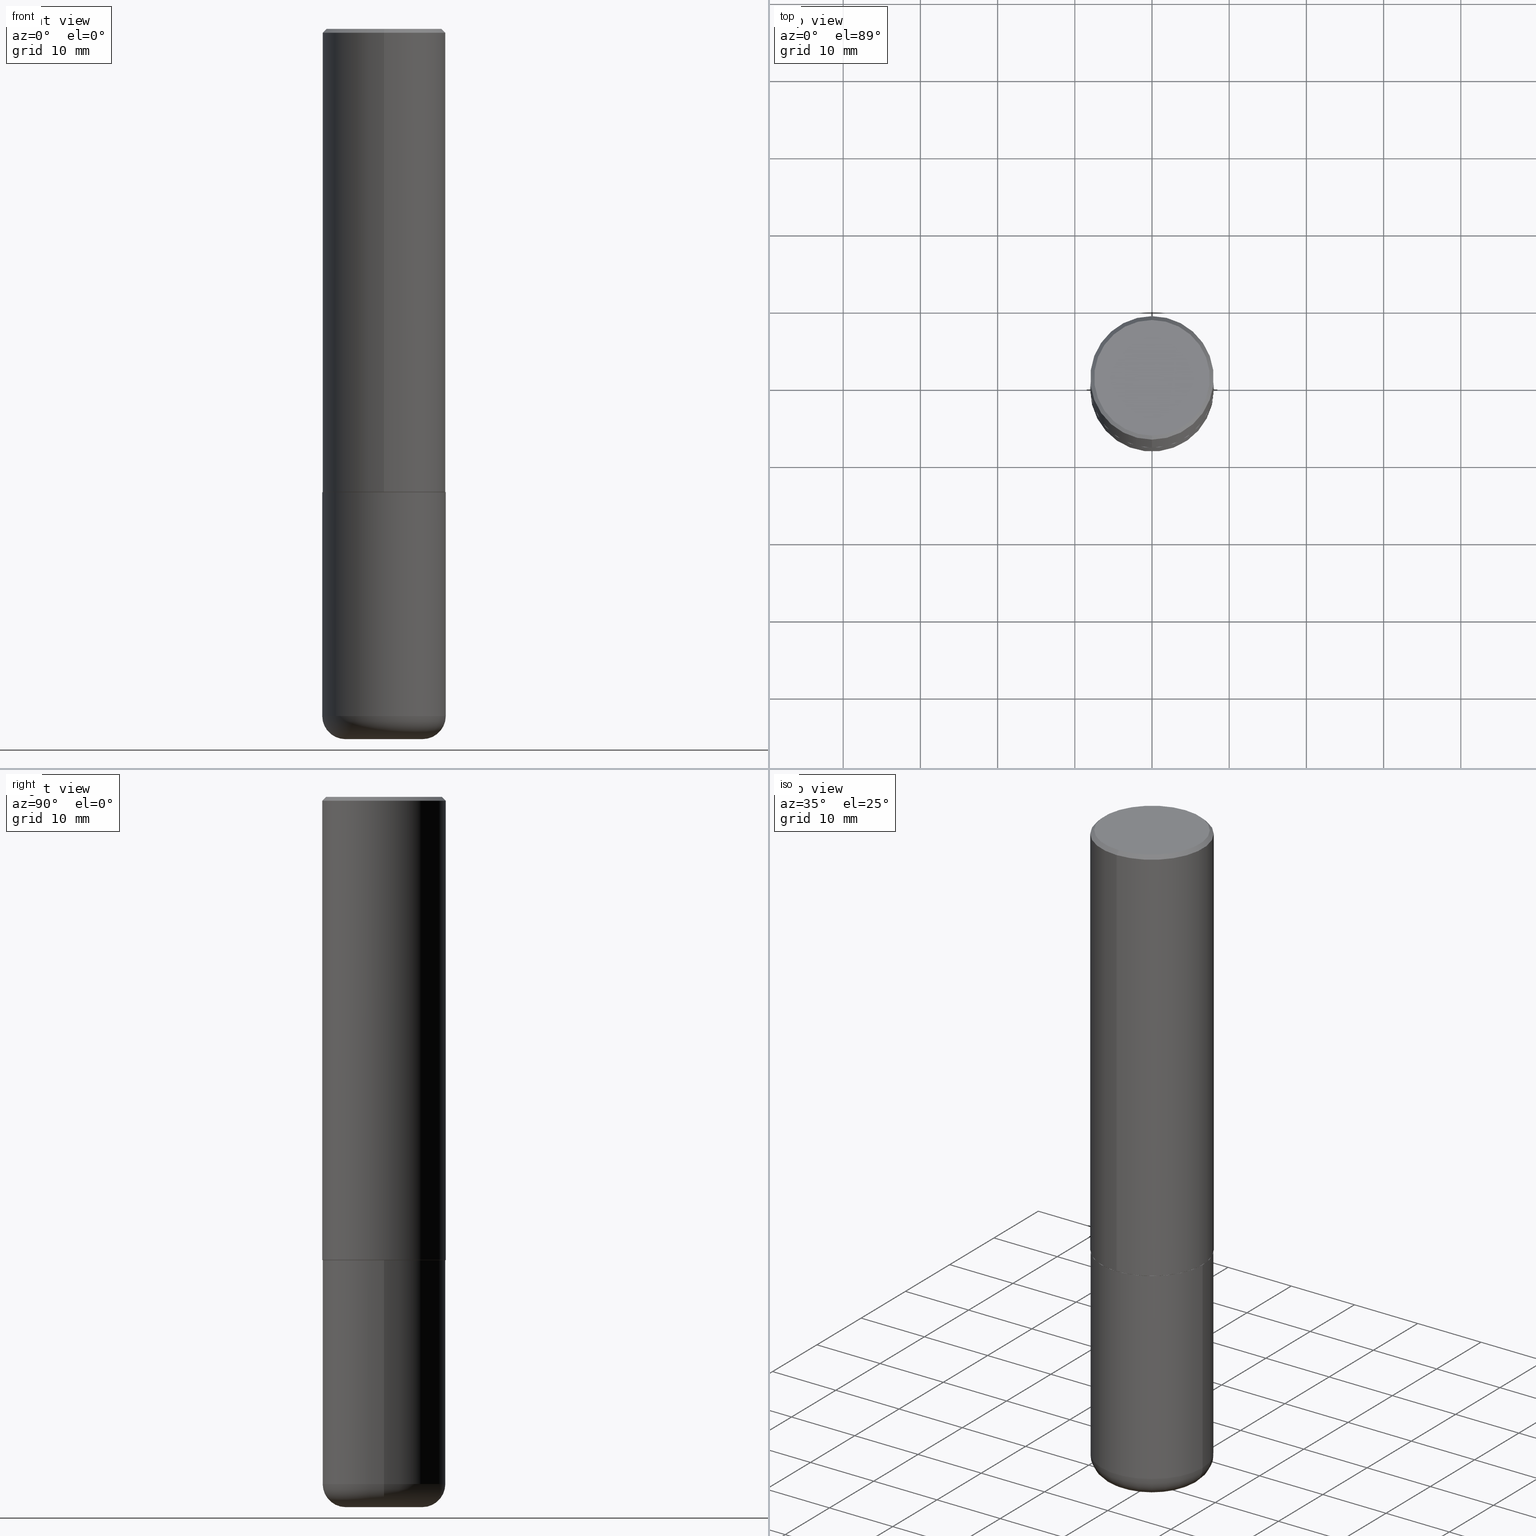
[diagram: canonical four-view strip — front | top / right | iso, engineering-drawing reading convention]
A machine part, canonical four-view strip (front | top / right | iso — engineering-drawing reading convention). The complete STEP part file that produces these views, byte-faithful:
ISO-10303-21;
HEADER;
FILE_DESCRIPTION (( 'STEP AP203' ),
    '1' );
FILE_NAME ('46478.STEP',
    '2024-03-04T23:30:33',
    ( '' ),
    ( '' ),
    'SwSTEP 2.0',
    'SolidWorks 2023',
    '' );
FILE_SCHEMA (( 'CONFIG_CONTROL_DESIGN' ));
ENDSEC;

DATA;
#1 = CARTESIAN_POINT ( 'NONE',  ( -5.117336148260046858E-45, 7.307990422923716453E-31, 2.092834829058542282E-16 ) ) ;
#2 = CC_DESIGN_APPROVAL ( #252, ( #277 ) ) ;
#3 = EDGE_CURVE ( 'NONE', #365, #248, #140, .T. ) ;
#4 = ORIENTED_EDGE ( 'NONE', *, *, #100, .F. ) ;
#5 = DIRECTION ( 'NONE',  ( -6.982962677686265922E-15, -1.000000000000000000, 3.469564049740290009E-15 ) ) ;
#6 = ORIENTED_EDGE ( 'NONE', *, *, #211, .T. ) ;
#7 = ORIENTED_EDGE ( 'NONE', *, *, #282, .T. ) ;
#8 = EDGE_LOOP ( 'NONE', ( #225, #343, #75, #331 ) ) ;
#9 = CARTESIAN_POINT ( 'NONE',  ( 2.237854346276435985E-15, 0.3149500000000001743, -1.099776987529980703E-15 ) ) ;
#10 = PLANE ( 'NONE',  #198 ) ;
#11 = AXIS2_PLACEMENT_3D ( 'NONE', #1, #386, #77 ) ;
#12 = CARTESIAN_POINT ( 'NONE',  ( -0.1968500000000000250, -1.062169457542108922E-14, -3.622000000000000330 ) ) ;
#13 = CIRCLE ( 'NONE', #340, 0.3139500000000000068 ) ;
#14 = ORIENTED_EDGE ( 'NONE', *, *, #345, .F. ) ;
#15 = CARTESIAN_POINT ( 'NONE',  ( 2.234301632597693067E-15, 0.3139499999999917357, -2.362200000000000966 ) ) ;
#16 = EDGE_CURVE ( 'NONE', #283, #185, #334, .T. ) ;
#17 = APPROVAL_PERSON_ORGANIZATION ( #245, #380, #33 ) ;
#18 = VERTEX_POINT ( 'NONE', #165 ) ;
#19 = FACE_OUTER_BOUND ( 'NONE', #294, .T. ) ;
#20 = VERTEX_POINT ( 'NONE', #354 ) ;
#21 =( LENGTH_UNIT ( ) NAMED_UNIT ( * ) SI_UNIT ( $, .METRE. ) );
#22 = PERSON_AND_ORGANIZATION ( #199, #143 ) ;
#23 = APPROVAL_DATE_TIME ( #364, #252 ) ;
#24 = AXIS2_PLACEMENT_3D ( 'NONE', #122, #286, #230 ) ;
#25 = CLOSED_SHELL ( 'NONE', ( #391, #139, #160, #307, #260, #146, #132, #106 ) ) ;
#26 = AXIS2_PLACEMENT_3D ( 'NONE', #229, #79, #202 ) ;
#27 = CC_DESIGN_DATE_AND_TIME_ASSIGNMENT ( #399, #87, ( #402 ) ) ;
#28 = APPLICATION_PROTOCOL_DEFINITION ( 'international standard', 'config_control_design', 1994, #65 ) ;
#29 = DIRECTION ( 'NONE',  ( -2.445169622182784195E-29, 3.491909787363010375E-15, 1.000000000000000000 ) ) ;
#30 = CARTESIAN_POINT ( 'NONE',  ( 0.3149500000000001743, -1.443308555850978931E-14, -3.503899999999999793 ) ) ;
#31 = EDGE_CURVE ( 'NONE', #299, #185, #258, .T. ) ;
#32 = CIRCLE ( 'NONE', #284, 0.1181000000000002742 ) ;
#33 = APPROVAL_ROLE ( '' ) ;
#34 = LOCAL_TIME ( 18, 30, 33.00000000000000000, #126 ) ;
#35 = DIRECTION ( 'NONE',  ( -2.445468806185136597E-29, 3.491481338843145583E-15, 1.000000000000000000 ) ) ;
#36 = CARTESIAN_POINT ( 'NONE',  ( 5.775979681520172513E-29, -8.248589299708901965E-15, -2.362199999999999633 ) ) ;
#37 = DIRECTION ( 'NONE',  ( -2.445468806185136877E-29, 3.491481338843145188E-15, 1.000000000000000000 ) ) ;
#38 = CARTESIAN_POINT ( 'NONE',  ( 8.568678149992099474E-29, -1.223380146317249786E-14, -3.503899999999999793 ) ) ;
#39 = APPROVAL ( #265, 'UNSPECIFIED' ) ;
#40 = CIRCLE ( 'NONE', #271, 0.1181000000000002742 ) ;
#41 = EDGE_LOOP ( 'NONE', ( #295, #136, #14, #298 ) ) ;
#42 = CARTESIAN_POINT ( 'NONE',  ( 8.568678149992099474E-29, -1.223380146317249786E-14, -3.503899999999999793 ) ) ;
#43 = DIRECTION ( 'NONE',  ( -6.982962677686266711E-15, -1.000000000000000000, 3.480615376543096919E-15 ) ) ;
#44 = LOCAL_TIME ( 18, 30, 33.00000000000000000, #161 ) ;
#45 = DIRECTION ( 'NONE',  ( 1.000000000000000000, -6.982962677686266711E-15, 0.000000000000000000 ) ) ;
#46 = ORIENTED_EDGE ( 'NONE', *, *, #172, .F. ) ;
#47 = CARTESIAN_POINT ( 'NONE',  ( -2.199284095337233467E-15, -0.3149500000000085564, -2.361199999999998411 ) ) ;
#48 = EDGE_CURVE ( 'NONE', #207, #18, #257, .T. ) ;
#49 = CARTESIAN_POINT ( 'NONE',  ( 2.237854346276465567E-15, 0.3149499999999920141, -2.361200000000000632 ) ) ;
#50 = LENGTH_MEASURE_WITH_UNIT ( LENGTH_MEASURE( 0.02539999999999999897 ), #21 );
#51 = ORIENTED_EDGE ( 'NONE', *, *, #88, .T. ) ;
#52 = CIRCLE ( 'NONE', #24, 0.1968500000000000250 ) ;
#53 = AXIS2_PLACEMENT_3D ( 'NONE', #104, #112, #406 ) ;
#54 = LOCAL_TIME ( 18, 30, 33.00000000000000000, #376 ) ;
#55 = EDGE_LOOP ( 'NONE', ( #196, #388, #124, #200 ) ) ;
#56 = DATE_AND_TIME ( #174, #263 ) ;
#57 = ADVANCED_FACE ( 'NONE', ( #138 ), #115, .T. ) ;
#58 = FACE_OUTER_BOUND ( 'NONE', #41, .T. ) ;
#59 = AXIS2_PLACEMENT_3D ( 'NONE', #302, #254, #5 ) ;
#60 = SECURITY_CLASSIFICATION_LEVEL ( 'unclassified' ) ;
#61 = DIRECTION ( 'NONE',  ( 1.000000000000000000, -6.982962677686269866E-15, 4.883557194083114022E-29 ) ) ;
#62 = EDGE_CURVE ( 'NONE', #373, #228, #99, .T. ) ;
#63 = PLANE ( 'NONE',  #367 ) ;
#64 = CYLINDRICAL_SURFACE ( 'NONE', #325, 0.3149500000000001743 ) ;
#65 = APPLICATION_CONTEXT ( 'configuration controlled 3d designs of mechanical parts and assemblies' ) ;
#66 = ORIENTED_EDGE ( 'NONE', *, *, #313, .T. ) ;
#67 = PERSON_AND_ORGANIZATION ( #199, #143 ) ;
#68 = EDGE_CURVE ( 'NONE', #266, #299, #103, .T. ) ;
#69 = CARTESIAN_POINT ( 'NONE',  ( 4.890339244365585170E-31, -6.983819574726043281E-17, -0.02000000000000006981 ) ) ;
#70 = CALENDAR_DATE ( 2024, 4, 3 ) ;
#71 = CALENDAR_DATE ( 2024, 4, 3 ) ;
#72 = EDGE_CURVE ( 'NONE', #242, #221, #177, .T. ) ;
#73 = ORIENTED_EDGE ( 'NONE', *, *, #362, .F. ) ;
#74 = CARTESIAN_POINT ( 'NONE',  ( -2.160713844398143363E-15, -0.3149500000000000632, -0.01999999999999896652 ) ) ;
#75 = ORIENTED_EDGE ( 'NONE', *, *, #211, .F. ) ;
#76 = ORIENTED_EDGE ( 'NONE', *, *, #336, .T. ) ;
#77 = DIRECTION ( 'NONE',  ( -6.982962677686265922E-15, -1.000000000000000000, 3.491909787363010375E-15 ) ) ;
#78 = VECTOR ( 'NONE', #346, 39.37007874015748143 ) ;
#79 = DIRECTION ( 'NONE',  ( 2.438088387897960049E-29, -3.491481338843145188E-15, -1.000000000000000000 ) ) ;
#80 = CC_DESIGN_PERSON_AND_ORGANIZATION_ASSIGNMENT ( #22, #306, ( #411 ) ) ;
#81 = DIRECTION ( 'NONE',  ( -6.982962677686265922E-15, -1.000000000000000000, 3.491909787363010375E-15 ) ) ;
#82 = DIRECTION ( 'NONE',  ( -2.445468806185136597E-29, 3.491481338843145583E-15, 1.000000000000000000 ) ) ;
#83 = FACE_OUTER_BOUND ( 'NONE', #55, .T. ) ;
#84 = DIRECTION ( 'NONE',  ( -2.445468806185136597E-29, 3.491481338843145583E-15, 1.000000000000000000 ) ) ;
#85 = ORIENTED_EDGE ( 'NONE', *, *, #350, .F. ) ;
#86 = CARTESIAN_POINT ( 'NONE',  ( 0.000000000000000000, 0.000000000000000000, 0.000000000000000000 ) ) ;
#87 = DATE_TIME_ROLE ( 'classification_date' ) ;
#88 = EDGE_CURVE ( 'NONE', #18, #262, #101, .T. ) ;
#89 = APPROVAL_DATE_TIME ( #56, #39 ) ;
#90 = DIRECTION ( 'NONE',  ( 7.105427357601001859E-15, 1.000000000000000000, -3.491481338843145583E-15 ) ) ;
#91 = AXIS2_PLACEMENT_3D ( 'NONE', #42, #378, #108 ) ;
#92 = AXIS2_PLACEMENT_3D ( 'NONE', #38, #381, #315 ) ;
#93 = CALENDAR_DATE ( 2024, 4, 3 ) ;
#94 = EDGE_CURVE ( 'NONE', #262, #248, #407, .T. ) ;
#95 = CARTESIAN_POINT ( 'NONE',  ( -2.160713844398143363E-15, -0.3149500000000000632, -0.01999999999999896652 ) ) ;
#96 = APPROVAL_STATUS ( 'not_yet_approved' ) ;
#97 = DIRECTION ( 'NONE',  ( -2.445169622182784195E-29, 3.491909787363010375E-15, 1.000000000000000000 ) ) ;
#98 = PERSON_AND_ORGANIZATION ( #199, #143 ) ;
#99 = CIRCLE ( 'NONE', #324, 0.1968500000000000250 ) ;
#100 = EDGE_CURVE ( 'NONE', #266, #283, #130, .T. ) ;
#101 = LINE ( 'NONE', #369, #78 ) ;
#102 = FACE_OUTER_BOUND ( 'NONE', #390, .T. ) ;
#103 = CIRCLE ( 'NONE', #91, 0.3149500000000000077 ) ;
#104 = CARTESIAN_POINT ( 'NONE',  ( 4.890339244365585170E-31, -6.983819574726043281E-17, -0.02000000000000006981 ) ) ;
#105 = APPROVAL_PERSON_ORGANIZATION ( #239, #252, #241 ) ;
#106 = ADVANCED_FACE ( 'NONE', ( #102 ), #63, .F. ) ;
#107 = ORIENTED_EDGE ( 'NONE', *, *, #68, .T. ) ;
#108 = DIRECTION ( 'NONE',  ( 1.000000000000000000, -6.982962677686263555E-15, 0.000000000000000000 ) ) ;
#109 = DIRECTION ( 'NONE',  ( -6.982962677686264344E-15, -1.000000000000000000, 3.491909787363010375E-15 ) ) ;
#110 = ORIENTED_EDGE ( 'NONE', *, *, #218, .F. ) ;
#111 = CARTESIAN_POINT ( 'NONE',  ( 0.000000000000000000, 0.000000000000000000, 0.000000000000000000 ) ) ;
#112 = DIRECTION ( 'NONE',  ( 2.445169622182784195E-29, -3.491909787363010375E-15, -1.000000000000000000 ) ) ;
#113 = ORIENTED_EDGE ( 'NONE', *, *, #224, .F. ) ;
#114 = DIRECTION ( 'NONE',  ( -2.445169622182784195E-29, 3.491909787363009980E-15, 1.000000000000000000 ) ) ;
#115 = CYLINDRICAL_SURFACE ( 'NONE', #416, 0.3149500000000000077 ) ;
#116 = DIRECTION ( 'NONE',  ( 1.000000000000000000, -6.982962677686263555E-15, 0.000000000000000000 ) ) ;
#117 = DIRECTION ( 'NONE',  ( 2.438088387897960049E-29, -3.491481338843145188E-15, -1.000000000000000000 ) ) ;
#118 = ORIENTED_EDGE ( 'NONE', *, *, #375, .F. ) ;
#119 = ADVANCED_FACE ( 'NONE', ( #233 ), #189, .T. ) ;
#120 = LINE ( 'NONE', #9, #303 ) ;
#121 = PERSON_AND_ORGANIZATION_ROLE ( 'creator' ) ;
#122 = CARTESIAN_POINT ( 'NONE',  ( 8.857488016002565597E-29, -1.264614540928987357E-14, -3.622000000000000330 ) ) ;
#123 = EDGE_CURVE ( 'NONE', #228, #373, #52, .T. ) ;
#124 = ORIENTED_EDGE ( 'NONE', *, *, #313, .F. ) ;
#125 = CIRCLE ( 'NONE', #408, 0.3149500000000000077 ) ;
#126 = COORDINATED_UNIVERSAL_TIME_OFFSET ( 5, 0, .BEHIND. ) ;
#127 = ORIENTED_EDGE ( 'NONE', *, *, #188, .T. ) ;
#128 = DIRECTION ( 'NONE',  ( -6.982962677686265922E-15, -1.000000000000000000, 3.496670018878889100E-15 ) ) ;
#129 = CIRCLE ( 'NONE', #59, 0.3149500000000002853 ) ;
#130 = LINE ( 'NONE', #288, #317 ) ;
#131 = DIRECTION ( 'NONE',  ( -2.445169622182784195E-29, 3.491909787363010375E-15, 1.000000000000000000 ) ) ;
#132 = ADVANCED_FACE ( 'NONE', ( #314 ), #181, .F. ) ;
#133 = DIRECTION ( 'NONE',  ( -6.982962677686266711E-15, -1.000000000000000000, 3.480615376543096919E-15 ) ) ;
#134 = VECTOR ( 'NONE', #37, 39.37007874015748143 ) ;
#135 = CONICAL_SURFACE ( 'NONE', #151, 0.3149500000000000077, 0.7853981633974471688 ) ;
#136 = ORIENTED_EDGE ( 'NONE', *, *, #72, .T. ) ;
#137 = LOCAL_TIME ( 18, 30, 33.00000000000000000, #178 ) ;
#138 = FACE_OUTER_BOUND ( 'NONE', #301, .T. ) ;
#139 = ADVANCED_FACE ( 'NONE', ( #83 ), #344, .T. ) ;
#140 = LINE ( 'NONE', #359, #400 ) ;
#141 = CARTESIAN_POINT ( 'NONE',  ( 5.776686413970529753E-29, -8.247577218615278049E-15, -2.362199999999999633 ) ) ;
#142 = CYLINDRICAL_SURFACE ( 'NONE', #217, 0.3149500000000000077 ) ;
#143 = ORGANIZATION ( 'UNSPECIFIED', 'UNSPECIFIED', '' ) ;
#144 = DIRECTION ( 'NONE',  ( 6.982962677686265922E-15, 1.000000000000000000, -3.491909787363009980E-15 ) ) ;
#145 = CC_DESIGN_SECURITY_CLASSIFICATION ( #402, ( #411 ) ) ;
#146 = ADVANCED_FACE ( 'NONE', ( #19 ), #351, .T. ) ;
#147 = ORIENTED_EDGE ( 'NONE', *, *, #16, .F. ) ;
#148 = CARTESIAN_POINT ( 'NONE',  ( -2.092108864420427242E-15, -0.2949499999999997679, 1.239222274688573328E-15 ) ) ;
#149 = VECTOR ( 'NONE', #156, 39.37007874015748854 ) ;
#150 = PERSON_AND_ORGANIZATION ( #199, #143 ) ;
#151 = AXIS2_PLACEMENT_3D ( 'NONE', #157, #214, #280 ) ;
#152 = PERSON_AND_ORGANIZATION ( #199, #143 ) ;
#153 = ADVANCED_FACE ( 'NONE', ( #377 ), #401, .T. ) ;
#154 = UNCERTAINTY_MEASURE_WITH_UNIT (LENGTH_MEASURE( 1.000000000000000082E-05 ), #392, 'distance_accuracy_value', 'NONE');
#155 = AXIS2_PLACEMENT_3D ( 'NONE', #394, #269, #329 ) ;
#156 = DIRECTION ( 'NONE',  ( 5.024295867787889629E-15, 0.7071067811865257013, 0.7071067811865691111 ) ) ;
#157 = CARTESIAN_POINT ( 'NONE',  ( 4.890339244365585170E-31, -6.983819574726043281E-17, -0.02000000000000006981 ) ) ;
#158 = CARTESIAN_POINT ( 'NONE',  ( 2.230748918918891775E-15, 0.3139499999999917357, -2.362200000000000966 ) ) ;
#159 = EDGE_LOOP ( 'NONE', ( #110, #85 ) ) ;
#160 = ADVANCED_FACE ( 'NONE', ( #293 ), #311, .T. ) ;
#161 = COORDINATED_UNIVERSAL_TIME_OFFSET ( 5, 0, .BEHIND. ) ;
#162 = ORIENTED_EDGE ( 'NONE', *, *, #48, .F. ) ;
#163 = DATE_AND_TIME ( #71, #44 ) ;
#164 = DIRECTION ( 'NONE',  ( -2.445169622182784195E-29, 3.491909787363010375E-15, 1.000000000000000000 ) ) ;
#165 = CARTESIAN_POINT ( 'NONE',  ( 2.129454468560426178E-15, 0.2949499999999997679, -8.206553088768647725E-16 ) ) ;
#166 = CARTESIAN_POINT ( 'NONE',  ( 0.3149500000000000077, -2.199284095337289871E-15, 1.535751875536930130E-29 ) ) ;
#167 = DIRECTION ( 'NONE',  ( 1.000000000000000000, -6.982962677686266711E-15, 4.876176775795936353E-29 ) ) ;
#168 = ORIENTED_EDGE ( 'NONE', *, *, #362, .T. ) ;
#169 = AXIS2_PLACEMENT_3D ( 'NONE', #395, #215, #133 ) ;
#170 = EDGE_LOOP ( 'NONE', ( #46, #73, #51, #253 ) ) ;
#171 = APPROVAL_ROLE ( '' ) ;
#172 = EDGE_CURVE ( 'NONE', #207, #248, #220, .T. ) ;
#173 = DIRECTION ( 'NONE',  ( -2.445169622182783915E-29, 3.491909787363009980E-15, 1.000000000000000000 ) ) ;
#174 = CALENDAR_DATE ( 2024, 4, 3 ) ;
#175 = CARTESIAN_POINT ( 'NONE',  ( 0.000000000000000000, 0.000000000000000000, 0.000000000000000000 ) ) ;
#176 = VECTOR ( 'NONE', #192, 39.37007874015748143 ) ;
#177 = LINE ( 'NONE', #158, #149 ) ;
#178 = COORDINATED_UNIVERSAL_TIME_OFFSET ( 5, 0, .BEHIND. ) ;
#179 = CC_DESIGN_APPROVAL ( #380, ( #411 ) ) ;
#180 = PERSON_AND_ORGANIZATION_ROLE ( 'design_owner' ) ;
#181 = PLANE ( 'NONE',  #300 ) ;
#182 = CARTESIAN_POINT ( 'NONE',  ( -0.3149500000000001743, -9.995947116896060296E-15, -3.503899999999999793 ) ) ;
#183 = CIRCLE ( 'NONE', #342, 0.3139500000000000068 ) ;
#184 = CC_DESIGN_PERSON_AND_ORGANIZATION_ASSIGNMENT ( #98, #240, ( #411 ) ) ;
#185 = VERTEX_POINT ( 'NONE', #347 ) ;
#186 = DIRECTION ( 'NONE',  ( -2.445169622182784195E-29, 3.491909787363010375E-15, 1.000000000000000000 ) ) ;
#187 = DIRECTION ( 'NONE',  ( -4.937700262164378437E-15, -0.7071067811865208164, 0.7071067811865739960 ) ) ;
#188 = EDGE_CURVE ( 'NONE', #20, #365, #321, .T. ) ;
#189 = TOROIDAL_SURFACE ( 'NONE', #349, 0.1968500000000000250, 0.1181000000000002881 ) ;
#190 = AXIS2_PLACEMENT_3D ( 'NONE', #234, #267, #81 ) ;
#191 = DIRECTION ( 'NONE',  ( 1.000000000000000000, -6.982962677686266711E-15, 4.876176775795936353E-29 ) ) ;
#192 = DIRECTION ( 'NONE',  ( -4.851104656540957964E-15, -0.7071067811865491270, -0.7071067811865459074 ) ) ;
#193 = FACE_OUTER_BOUND ( 'NONE', #379, .T. ) ;
#194 = ORIENTED_EDGE ( 'NONE', *, *, #320, .F. ) ;
#195 = DIRECTION ( 'NONE',  ( -6.982962677686266711E-15, -1.000000000000000000, 3.480615376543096919E-15 ) ) ;
#196 = ORIENTED_EDGE ( 'NONE', *, *, #345, .T. ) ;
#197 = CARTESIAN_POINT ( 'NONE',  ( 5.775979681520172513E-29, -8.248589299708903542E-15, -2.362200000000000077 ) ) ;
#198 = AXIS2_PLACEMENT_3D ( 'NONE', #337, #117, #231 ) ;
#199 = PERSON ( 'UNSPECIFIED', 'UNSPECIFIED', 'UNSPECIFIED', ('UNSPECIFIED'), ('UNSPECIFIED'), ('UNSPECIFIED') ) ;
#200 = ORIENTED_EDGE ( 'NONE', *, *, #3, .F. ) ;
#201 = CARTESIAN_POINT ( 'NONE',  ( 5.773534511897989086E-29, -8.245097389921538599E-15, -2.361199999999999743 ) ) ;
#202 = DIRECTION ( 'NONE',  ( -1.000000000000000000, 6.982962677686265922E-15, -4.876176775795935793E-29 ) ) ;
#203 = CC_DESIGN_PERSON_AND_ORGANIZATION_ASSIGNMENT ( #67, #212, ( #402 ) ) ;
#204 = PRODUCT_DEFINITION_SHAPE ( 'NONE', 'NONE',  #277 ) ;
#205 = CLOSED_SHELL ( 'NONE', ( #232, #119, #244, #57, #153, #412 ) ) ;
#206 = CIRCLE ( 'NONE', #417, 0.3149500000000002853 ) ;
#207 = VERTEX_POINT ( 'NONE', #148 ) ;
#208 = DIRECTION ( 'NONE',  ( -2.445468806185136597E-29, 3.491481338843145583E-15, 1.000000000000000000 ) ) ;
#209 = MANIFOLD_SOLID_BREP ( 'Body-Move/Copy2[1]', #205 ) ;
#210 = ADVANCED_BREP_SHAPE_REPRESENTATION ( '46478', ( #209, #235, #368 ), #318 ) ;
#211 = EDGE_CURVE ( 'NONE', #185, #283, #246, .T. ) ;
#212 = PERSON_AND_ORGANIZATION_ROLE ( 'classification_officer' ) ;
#213 = AXIS2_PLACEMENT_3D ( 'NONE', #86, #29, #109 ) ;
#214 = DIRECTION ( 'NONE',  ( 2.445169622182784195E-29, -3.491909787363010375E-15, -1.000000000000000000 ) ) ;
#215 = DIRECTION ( 'NONE',  ( -2.445169622182784195E-29, 3.491909787363010375E-15, 1.000000000000000000 ) ) ;
#216 = AXIS2_PLACEMENT_3D ( 'NONE', #141, #250, #45 ) ;
#217 = AXIS2_PLACEMENT_3D ( 'NONE', #268, #84, #167 ) ;
#218 = EDGE_CURVE ( 'NONE', #20, #242, #183, .T. ) ;
#219 = CARTESIAN_POINT ( 'NONE',  ( 2.059624841783562486E-15, 0.2949499999999997679, -9.252970503297919853E-16 ) ) ;
#220 = LINE ( 'NONE', #74, #176 ) ;
#221 = VERTEX_POINT ( 'NONE', #49 ) ;
#222 = ORIENTED_EDGE ( 'NONE', *, *, #3, .T. ) ;
#223 = CARTESIAN_POINT ( 'NONE',  ( 5.775979681520172513E-29, -8.248589299708903542E-15, -2.362200000000000077 ) ) ;
#224 = EDGE_CURVE ( 'NONE', #221, #262, #120, .T. ) ;
#225 = ORIENTED_EDGE ( 'NONE', *, *, #375, .T. ) ;
#226 = EDGE_LOOP ( 'NONE', ( #162, #292, #66, #352 ) ) ;
#227 = AXIS2_PLACEMENT_3D ( 'NONE', #69, #186, #410 ) ;
#228 = VERTEX_POINT ( 'NONE', #387 ) ;
#229 = CARTESIAN_POINT ( 'NONE',  ( 5.776686413970529753E-29, -8.247577218615278049E-15, -2.362199999999999633 ) ) ;
#230 = DIRECTION ( 'NONE',  ( 1.000000000000000000, -6.982962677686267499E-15, 0.000000000000000000 ) ) ;
#231 = DIRECTION ( 'NONE',  ( -1.000000000000000000, 6.982962677686265922E-15, -4.876176775795935793E-29 ) ) ;
#232 = ADVANCED_FACE ( 'NONE', ( #357 ), #142, .T. ) ;
#233 = FACE_OUTER_BOUND ( 'NONE', #272, .T. ) ;
#234 = CARTESIAN_POINT ( 'NONE',  ( -5.117336148260046858E-45, 7.307990422923716453E-31, 2.092834829058542282E-16 ) ) ;
#235 = MANIFOLD_SOLID_BREP ( 'Body-Move/Copy2[2]', #25 ) ;
#236 = CC_DESIGN_PERSON_AND_ORGANIZATION_ASSIGNMENT ( #152, #180, ( #396 ) ) ;
#237 = PLANE ( 'NONE',  #26 ) ;
#238 = DIRECTION ( 'NONE',  ( -6.982962677686264344E-15, -1.000000000000000000, 3.491909787363010375E-15 ) ) ;
#239 = PERSON_AND_ORGANIZATION ( #199, #143 ) ;
#240 = PERSON_AND_ORGANIZATION_ROLE ( 'design_supplier' ) ;
#241 = APPROVAL_ROLE ( '' ) ;
#242 = VERTEX_POINT ( 'NONE', #15 ) ;
#243 = VECTOR ( 'NONE', #187, 39.37007874015748854 ) ;
#244 = ADVANCED_FACE ( 'NONE', ( #259 ), #237, .F. ) ;
#245 = PERSON_AND_ORGANIZATION ( #199, #143 ) ;
#246 = CIRCLE ( 'NONE', #155, 0.3149500000000000077 ) ;
#247 = PRODUCT_RELATED_PRODUCT_CATEGORY ( 'detail', '', ( #396 ) ) ;
#248 = VERTEX_POINT ( 'NONE', #95 ) ;
#249 = ORIENTED_EDGE ( 'NONE', *, *, #123, .F. ) ;
#250 = DIRECTION ( 'NONE',  ( -2.445468806185136597E-29, 3.491481338843145583E-15, 1.000000000000000000 ) ) ;
#251 = CARTESIAN_POINT ( 'NONE',  ( -2.192301132659545875E-15, -0.3139500000000082780, -2.362199999999998745 ) ) ;
#252 = APPROVAL ( #403, 'UNSPECIFIED' ) ;
#253 = ORIENTED_EDGE ( 'NONE', *, *, #94, .T. ) ;
#254 = DIRECTION ( 'NONE',  ( -2.445169622182784195E-29, 3.491909787363010375E-15, 1.000000000000000000 ) ) ;
#255 = DESIGN_CONTEXT ( 'detailed design', #281, 'design' ) ;
#256 = DIRECTION ( 'NONE',  ( -2.445169622182784195E-29, 3.491909787363010375E-15, 1.000000000000000000 ) ) ;
#257 = CIRCLE ( 'NONE', #11, 0.2949499999999997679 ) ;
#258 = LINE ( 'NONE', #166, #134 ) ;
#259 = FACE_OUTER_BOUND ( 'NONE', #309, .T. ) ;
#260 = ADVANCED_FACE ( 'NONE', ( #370 ), #64, .T. ) ;
#261 = AXIS2_PLACEMENT_3D ( 'NONE', #310, #131, #195 ) ;
#262 = VERTEX_POINT ( 'NONE', #312 ) ;
#263 = LOCAL_TIME ( 18, 30, 33.00000000000000000, #393 ) ;
#264 = CARTESIAN_POINT ( 'NONE',  ( 8.568678149992099474E-29, -1.223380146317249786E-14, -3.503899999999999793 ) ) ;
#265 = APPROVAL_STATUS ( 'not_yet_approved' ) ;
#266 = VERTEX_POINT ( 'NONE', #182 ) ;
#267 = DIRECTION ( 'NONE',  ( -2.445169622182784195E-29, 3.491909787363010375E-15, 1.000000000000000000 ) ) ;
#268 = CARTESIAN_POINT ( 'NONE',  ( 0.000000000000000000, 0.000000000000000000, 0.000000000000000000 ) ) ;
#269 = DIRECTION ( 'NONE',  ( -2.445468806185136597E-29, 3.491481338843145583E-15, 1.000000000000000000 ) ) ;
#270 =( NAMED_UNIT ( * ) PLANE_ANGLE_UNIT ( ) SI_UNIT ( $, .RADIAN. ) );
#271 = AXIS2_PLACEMENT_3D ( 'NONE', #276, #274, #341 ) ;
#272 = EDGE_LOOP ( 'NONE', ( #333, #382, #118, #323 ) ) ;
#273 = CARTESIAN_POINT ( 'NONE',  ( -0.1968500000000000250, -1.083509808782873928E-14, -3.503899999999999793 ) ) ;
#274 = DIRECTION ( 'NONE',  ( -6.982962677686266711E-15, -1.000000000000000000, 3.491481338843145583E-15 ) ) ;
#275 = MECHANICAL_CONTEXT ( 'NONE', #65, 'mechanical' ) ;
#276 = CARTESIAN_POINT ( 'NONE',  ( 0.1968500000000000250, -1.360839766627503947E-14, -3.503899999999999793 ) ) ;
#277 = PRODUCT_DEFINITION ( 'UNKNOWN', '', #411, #255 ) ;
#278 = CARTESIAN_POINT ( 'NONE',  ( 0.000000000000000000, 0.000000000000000000, 0.000000000000000000 ) ) ;
#279 = APPLICATION_PROTOCOL_DEFINITION ( 'international standard', 'config_control_design', 1994, #281 ) ;
#280 = DIRECTION ( 'NONE',  ( 6.982962677686265922E-15, 1.000000000000000000, -3.496670018878889100E-15 ) ) ;
#281 = APPLICATION_CONTEXT ( 'configuration controlled 3d designs of mechanical parts and assemblies' ) ;
#282 = EDGE_CURVE ( 'NONE', #228, #299, #40, .T. ) ;
#283 = VERTEX_POINT ( 'NONE', #398 ) ;
#284 = AXIS2_PLACEMENT_3D ( 'NONE', #273, #90, #339 ) ;
#285 = ORIENTED_EDGE ( 'NONE', *, *, #48, .T. ) ;
#286 = DIRECTION ( 'NONE',  ( -2.445468806185136597E-29, 3.491481338843145583E-15, 1.000000000000000000 ) ) ;
#287 = CC_DESIGN_APPROVAL ( #39, ( #402 ) ) ;
#288 = CARTESIAN_POINT ( 'NONE',  ( -0.3149500000000000077, 2.237854346276435590E-15, -1.549218606675782676E-29 ) ) ;
#289 = DATE_AND_TIME ( #70, #54 ) ;
#290 = DATE_TIME_ROLE ( 'creation_date' ) ;
#291 = ORIENTED_EDGE ( 'NONE', *, *, #68, .F. ) ;
#292 = ORIENTED_EDGE ( 'NONE', *, *, #172, .T. ) ;
#293 = FACE_OUTER_BOUND ( 'NONE', #226, .T. ) ;
#294 = EDGE_LOOP ( 'NONE', ( #405, #330, #127, #418 ) ) ;
#295 = ORIENTED_EDGE ( 'NONE', *, *, #218, .T. ) ;
#296 = ORIENTED_EDGE ( 'NONE', *, *, #62, .T. ) ;
#297 = DIRECTION ( 'NONE',  ( -6.982962677686265922E-15, -1.000000000000000000, 3.469564049740290009E-15 ) ) ;
#298 = ORIENTED_EDGE ( 'NONE', *, *, #188, .F. ) ;
#299 = VERTEX_POINT ( 'NONE', #30 ) ;
#300 = AXIS2_PLACEMENT_3D ( 'NONE', #36, #173, #413 ) ;
#301 = EDGE_LOOP ( 'NONE', ( #4, #107, #335, #147 ) ) ;
#302 = CARTESIAN_POINT ( 'NONE',  ( 5.773534511897989086E-29, -8.245097389921538599E-15, -2.361199999999999743 ) ) ;
#303 = VECTOR ( 'NONE', #114, 39.37007874015748143 ) ;
#304 = DIRECTION ( 'NONE',  ( 0.000000000000000000, 0.000000000000000000, 1.000000000000000000 ) ) ;
#305 = CALENDAR_DATE ( 2024, 4, 3 ) ;
#306 = PERSON_AND_ORGANIZATION_ROLE ( 'creator' ) ;
#307 = ADVANCED_FACE ( 'NONE', ( #308 ), #135, .T. ) ;
#308 = FACE_OUTER_BOUND ( 'NONE', #170, .T. ) ;
#309 = EDGE_LOOP ( 'NONE', ( #6, #322 ) ) ;
#310 = CARTESIAN_POINT ( 'NONE',  ( 5.775979681520172513E-29, -8.248589299708903542E-15, -2.362200000000000077 ) ) ;
#311 = CONICAL_SURFACE ( 'NONE', #53, 0.3149500000000000077, 0.7853981633974471688 ) ;
#312 = CARTESIAN_POINT ( 'NONE',  ( 2.199284095337289871E-15, 0.3149499999999999522, -0.02000000000000116962 ) ) ;
#313 = EDGE_CURVE ( 'NONE', #248, #262, #372, .T. ) ;
#314 = FACE_OUTER_BOUND ( 'NONE', #159, .T. ) ;
#315 = DIRECTION ( 'NONE',  ( 1.000000000000000000, -6.982962677686269866E-15, 4.883557194083114022E-29 ) ) ;
#316 =( NAMED_UNIT ( * ) SI_UNIT ( $, .STERADIAN. ) SOLID_ANGLE_UNIT ( ) );
#317 = VECTOR ( 'NONE', #374, 39.37007874015748143 ) ;
#318 =( GEOMETRIC_REPRESENTATION_CONTEXT ( 3 ) GLOBAL_UNCERTAINTY_ASSIGNED_CONTEXT ( ( #154 ) ) GLOBAL_UNIT_ASSIGNED_CONTEXT ( ( #392, #270, #316 ) ) REPRESENTATION_CONTEXT ( 'NONE', 'WORKASPACE' ) );
#319 = APPROVAL_PERSON_ORGANIZATION ( #332, #39, #171 ) ;
#320 = EDGE_CURVE ( 'NONE', #373, #266, #32, .T. ) ;
#321 = LINE ( 'NONE', #251, #243 ) ;
#322 = ORIENTED_EDGE ( 'NONE', *, *, #16, .T. ) ;
#323 = ORIENTED_EDGE ( 'NONE', *, *, #282, .F. ) ;
#324 = AXIS2_PLACEMENT_3D ( 'NONE', #326, #35, #415 ) ;
#325 = AXIS2_PLACEMENT_3D ( 'NONE', #175, #97, #238 ) ;
#326 = CARTESIAN_POINT ( 'NONE',  ( 8.857488016002565597E-29, -1.264614540928987357E-14, -3.622000000000000330 ) ) ;
#327 = CC_DESIGN_DATE_AND_TIME_ASSIGNMENT ( #163, #290, ( #277 ) ) ;
#328 = EDGE_LOOP ( 'NONE', ( #113, #76, #222, #361 ) ) ;
#329 = DIRECTION ( 'NONE',  ( 1.000000000000000000, -6.982962677686266711E-15, 0.000000000000000000 ) ) ;
#330 = ORIENTED_EDGE ( 'NONE', *, *, #350, .T. ) ;
#331 = ORIENTED_EDGE ( 'NONE', *, *, #31, .F. ) ;
#332 = PERSON_AND_ORGANIZATION ( #199, #143 ) ;
#333 = ORIENTED_EDGE ( 'NONE', *, *, #123, .T. ) ;
#334 = CIRCLE ( 'NONE', #216, 0.3149500000000000077 ) ;
#335 = ORIENTED_EDGE ( 'NONE', *, *, #31, .T. ) ;
#336 = EDGE_CURVE ( 'NONE', #221, #365, #206, .T. ) ;
#337 = CARTESIAN_POINT ( 'NONE',  ( 1.837453072857033597E-29, -2.269923500344985533E-14, -3.621999999999999886 ) ) ;
#338 = APPROVAL_DATE_TIME ( #289, #380 ) ;
#339 = DIRECTION ( 'NONE',  ( -1.000000000000000000, 7.105427357601003436E-15, 0.000000000000000000 ) ) ;
#340 = AXIS2_PLACEMENT_3D ( 'NONE', #223, #256, #358 ) ;
#341 = DIRECTION ( 'NONE',  ( 1.000000000000000000, -6.982962677686273021E-15, 0.000000000000000000 ) ) ;
#342 = AXIS2_PLACEMENT_3D ( 'NONE', #197, #384, #43 ) ;
#343 = ORIENTED_EDGE ( 'NONE', *, *, #100, .T. ) ;
#344 = CYLINDRICAL_SURFACE ( 'NONE', #213, 0.3149500000000001743 ) ;
#345 = EDGE_CURVE ( 'NONE', #365, #221, #129, .T. ) ;
#346 = DIRECTION ( 'NONE',  ( 4.937700262164541731E-15, 0.7071067811865442421, -0.7071067811865507924 ) ) ;
#347 = CARTESIAN_POINT ( 'NONE',  ( 0.3149500000000000077, -1.044686131395256792E-14, -2.362199999999999633 ) ) ;
#348 = DIRECTION ( 'NONE',  ( 2.445169622182783915E-29, -3.491909787363009980E-15, -1.000000000000000000 ) ) ;
#349 = AXIS2_PLACEMENT_3D ( 'NONE', #409, #208, #61 ) ;
#350 = EDGE_CURVE ( 'NONE', #242, #20, #13, .T. ) ;
#351 = CONICAL_SURFACE ( 'NONE', #261, 0.3139500000000000068, 0.7853981633974141952 ) ;
#352 = ORIENTED_EDGE ( 'NONE', *, *, #88, .F. ) ;
#353 = ORIENTED_EDGE ( 'NONE', *, *, #62, .F. ) ;
#354 = CARTESIAN_POINT ( 'NONE',  ( -2.192301132659545875E-15, -0.3139500000000082780, -2.362199999999998745 ) ) ;
#355 = CONICAL_SURFACE ( 'NONE', #169, 0.3139500000000000068, 0.7853981633974141952 ) ;
#356 = DIRECTION ( 'NONE',  ( -2.445169622182784195E-29, 3.491909787363009980E-15, 1.000000000000000000 ) ) ;
#357 = FACE_OUTER_BOUND ( 'NONE', #8, .T. ) ;
#358 = DIRECTION ( 'NONE',  ( -6.982962677686266711E-15, -1.000000000000000000, 3.480615376543096919E-15 ) ) ;
#359 = CARTESIAN_POINT ( 'NONE',  ( -2.199284095337290265E-15, -0.3149500000000001743, 1.099776987529980703E-15 ) ) ;
#360 = SHAPE_DEFINITION_REPRESENTATION ( #204, #210 ) ;
#361 = ORIENTED_EDGE ( 'NONE', *, *, #94, .F. ) ;
#362 = EDGE_CURVE ( 'NONE', #18, #207, #385, .T. ) ;
#363 = AXIS2_PLACEMENT_3D ( 'NONE', #404, #366, #128 ) ;
#364 = DATE_AND_TIME ( #93, #34 ) ;
#365 = VERTEX_POINT ( 'NONE', #47 ) ;
#366 = DIRECTION ( 'NONE',  ( -2.445169622182784195E-29, 3.491909787363010375E-15, 1.000000000000000000 ) ) ;
#367 = AXIS2_PLACEMENT_3D ( 'NONE', #219, #348, #144 ) ;
#368 = AXIS2_PLACEMENT_3D ( 'NONE', #278, #304, #397 ) ;
#369 = CARTESIAN_POINT ( 'NONE',  ( 2.199284095337289871E-15, 0.3149499999999999522, -0.02000000000000116962 ) ) ;
#370 = FACE_OUTER_BOUND ( 'NONE', #328, .T. ) ;
#371 = CC_DESIGN_PERSON_AND_ORGANIZATION_ASSIGNMENT ( #150, #121, ( #277 ) ) ;
#372 = CIRCLE ( 'NONE', #363, 0.3149500000000000077 ) ;
#373 = VERTEX_POINT ( 'NONE', #12 ) ;
#374 = DIRECTION ( 'NONE',  ( -2.445468806185136877E-29, 3.491481338843145188E-15, 1.000000000000000000 ) ) ;
#375 = EDGE_CURVE ( 'NONE', #299, #266, #125, .T. ) ;
#376 = COORDINATED_UNIVERSAL_TIME_OFFSET ( 5, 0, .BEHIND. ) ;
#377 = FACE_OUTER_BOUND ( 'NONE', #383, .T. ) ;
#378 = DIRECTION ( 'NONE',  ( -2.445468806185136597E-29, 3.491481338843145583E-15, 1.000000000000000000 ) ) ;
#379 = EDGE_LOOP ( 'NONE', ( #249, #353 ) ) ;
#380 = APPROVAL ( #96, 'UNSPECIFIED' ) ;
#381 = DIRECTION ( 'NONE',  ( -2.445468806185136597E-29, 3.491481338843145583E-15, 1.000000000000000000 ) ) ;
#382 = ORIENTED_EDGE ( 'NONE', *, *, #320, .T. ) ;
#383 = EDGE_LOOP ( 'NONE', ( #194, #296, #7, #291 ) ) ;
#384 = DIRECTION ( 'NONE',  ( -2.445169622182784195E-29, 3.491909787363010375E-15, 1.000000000000000000 ) ) ;
#385 = CIRCLE ( 'NONE', #190, 0.2949499999999997679 ) ;
#386 = DIRECTION ( 'NONE',  ( -2.445169622182784195E-29, 3.491909787363010375E-15, 1.000000000000000000 ) ) ;
#387 = CARTESIAN_POINT ( 'NONE',  ( 0.1968500000000000250, -1.402074161239241518E-14, -3.622000000000000330 ) ) ;
#388 = ORIENTED_EDGE ( 'NONE', *, *, #224, .T. ) ;
#389 = DIRECTION ( 'NONE',  ( -2.445468806185136597E-29, 3.491481338843145583E-15, 1.000000000000000000 ) ) ;
#390 = EDGE_LOOP ( 'NONE', ( #168, #285 ) ) ;
#391 = ADVANCED_FACE ( 'NONE', ( #58 ), #355, .T. ) ;
#392 =( CONVERSION_BASED_UNIT ( 'INCH', #50 ) LENGTH_UNIT ( ) NAMED_UNIT ( #414 ) );
#393 = COORDINATED_UNIVERSAL_TIME_OFFSET ( 5, 0, .BEHIND. ) ;
#394 = CARTESIAN_POINT ( 'NONE',  ( 5.776686413970529753E-29, -8.247577218615278049E-15, -2.362199999999999633 ) ) ;
#395 = CARTESIAN_POINT ( 'NONE',  ( 5.775979681520172513E-29, -8.248589299708903542E-15, -2.362200000000000077 ) ) ;
#396 = PRODUCT ( '46478', '46478', '', ( #275 ) ) ;
#397 = DIRECTION ( 'NONE',  ( 1.000000000000000000, 0.000000000000000000, 0.000000000000000000 ) ) ;
#398 = CARTESIAN_POINT ( 'NONE',  ( -0.3149500000000000077, -8.002834994617451969E-15, -2.362199999999999633 ) ) ;
#399 = DATE_AND_TIME ( #305, #137 ) ;
#400 = VECTOR ( 'NONE', #356, 39.37007874015748143 ) ;
#401 = TOROIDAL_SURFACE ( 'NONE', #92, 0.1968500000000000250, 0.1181000000000002881 ) ;
#402 = SECURITY_CLASSIFICATION ( '', '', #60 ) ;
#403 = APPROVAL_STATUS ( 'not_yet_approved' ) ;
#404 = CARTESIAN_POINT ( 'NONE',  ( 4.890339244365585170E-31, -6.983819574726043281E-17, -0.02000000000000006981 ) ) ;
#405 = ORIENTED_EDGE ( 'NONE', *, *, #72, .F. ) ;
#406 = DIRECTION ( 'NONE',  ( 6.982962677686265922E-15, 1.000000000000000000, -3.496670018878889100E-15 ) ) ;
#407 = CIRCLE ( 'NONE', #227, 0.3149500000000000077 ) ;
#408 = AXIS2_PLACEMENT_3D ( 'NONE', #264, #389, #116 ) ;
#409 = CARTESIAN_POINT ( 'NONE',  ( 8.568678149992099474E-29, -1.223380146317249786E-14, -3.503899999999999793 ) ) ;
#410 = DIRECTION ( 'NONE',  ( -6.982962677686265922E-15, -1.000000000000000000, 3.496670018878889100E-15 ) ) ;
#411 = PRODUCT_DEFINITION_FORMATION_WITH_SPECIFIED_SOURCE ( 'ANY', '', #396, .NOT_KNOWN. ) ;
#412 = ADVANCED_FACE ( 'NONE', ( #193 ), #10, .T. ) ;
#413 = DIRECTION ( 'NONE',  ( -6.982962677686265922E-15, -1.000000000000000000, 3.491909787363009980E-15 ) ) ;
#414 = DIMENSIONAL_EXPONENTS ( 1.000000000000000000, 0.000000000000000000, 0.000000000000000000, 0.000000000000000000, 0.000000000000000000, 0.000000000000000000, 0.000000000000000000 ) ;
#415 = DIRECTION ( 'NONE',  ( 1.000000000000000000, -6.982962677686267499E-15, 0.000000000000000000 ) ) ;
#416 = AXIS2_PLACEMENT_3D ( 'NONE', #111, #82, #191 ) ;
#417 = AXIS2_PLACEMENT_3D ( 'NONE', #201, #164, #297 ) ;
#418 = ORIENTED_EDGE ( 'NONE', *, *, #336, .F. ) ;
ENDSEC;
END-ISO-10303-21;
